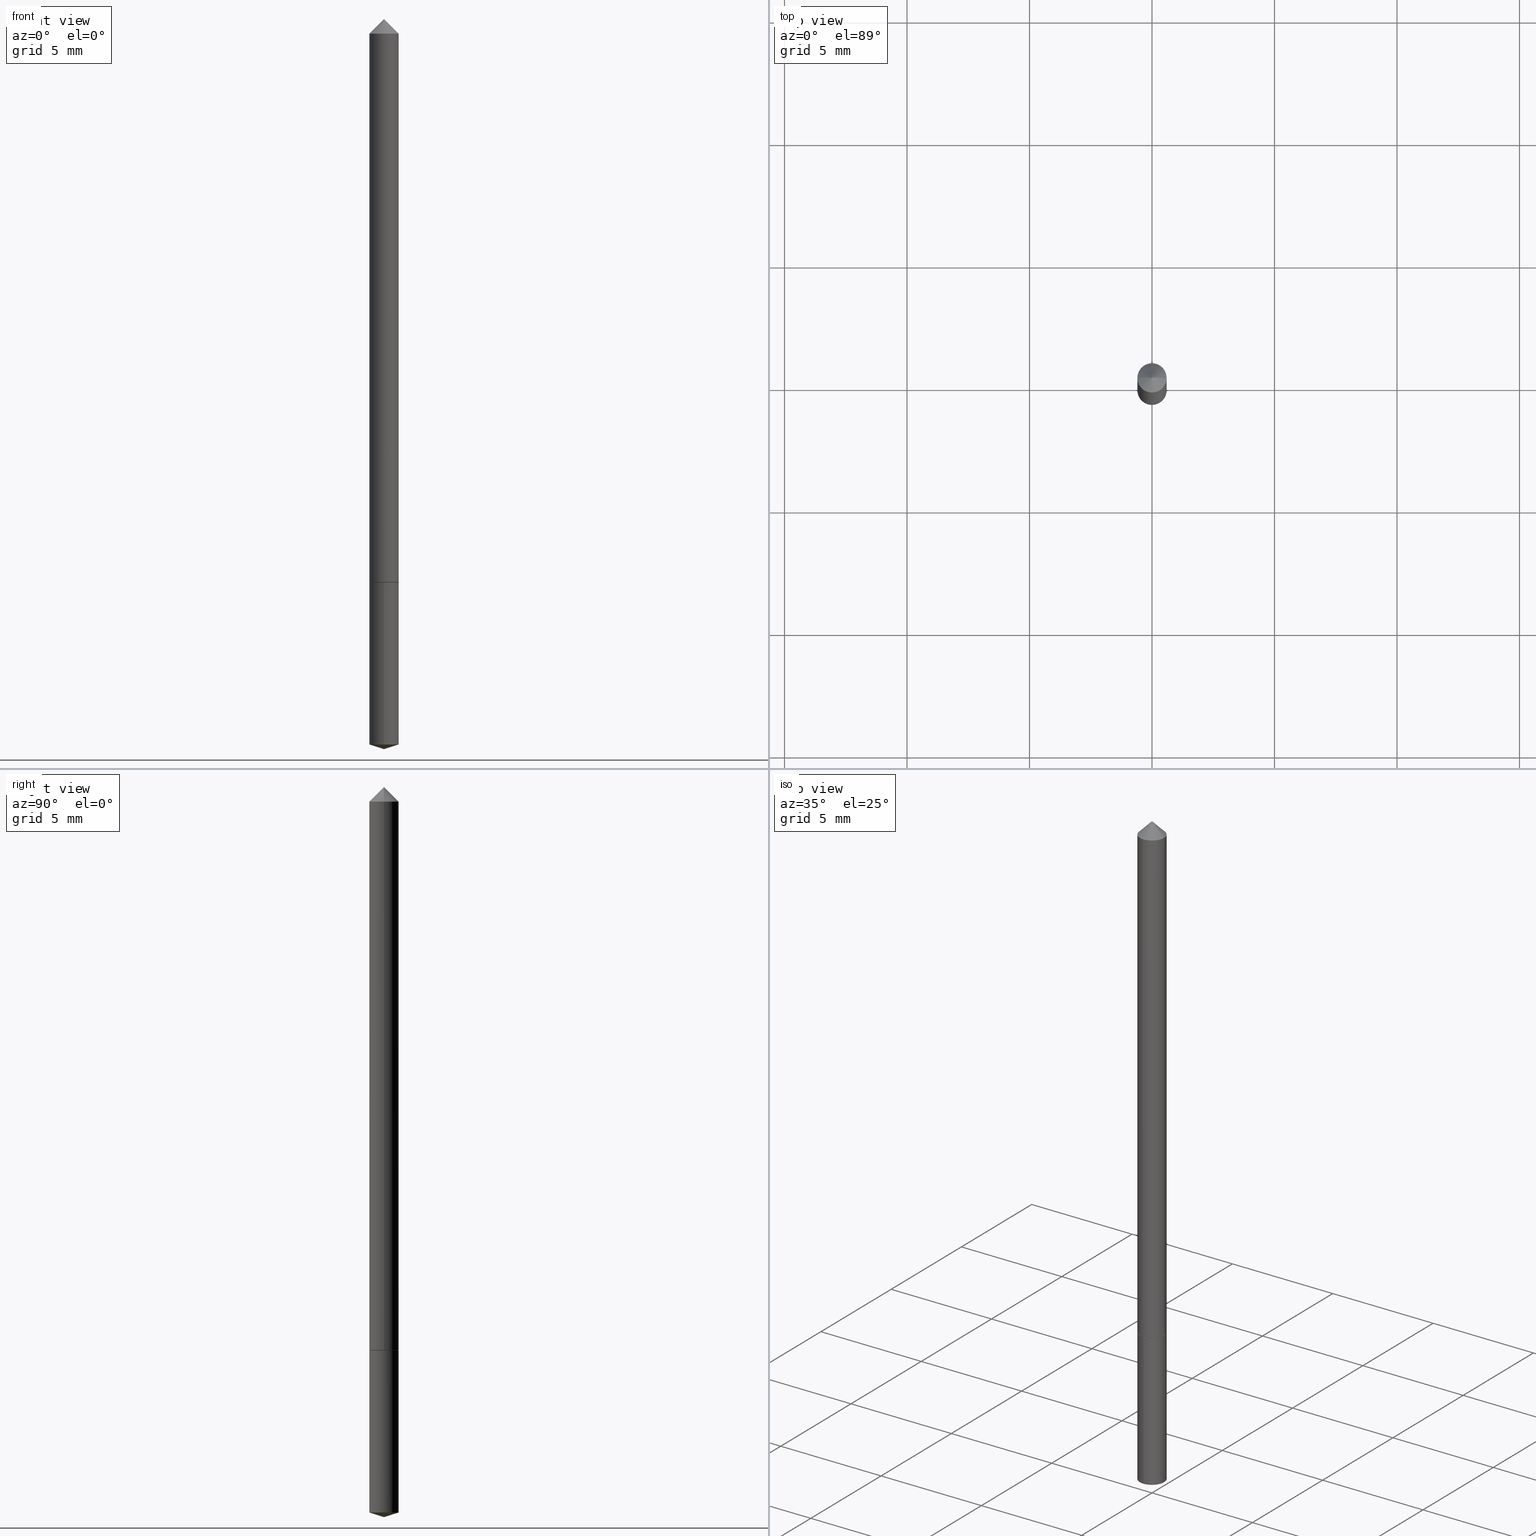
[diagram: canonical four-view strip — front | top / right | iso, engineering-drawing reading convention]
A machine part, canonical four-view strip (front | top / right | iso — engineering-drawing reading convention). The complete STEP part file that produces these views, byte-faithful:
ISO-10303-21;
HEADER;
FILE_DESCRIPTION (( 'STEP AP203' ),
    '1' );
FILE_NAME ('68657.STEP',
    '2024-04-23T13:25:48',
    ( '' ),
    ( '' ),
    'SwSTEP 2.0',
    'SolidWorks 2023',
    '' );
FILE_SCHEMA (( 'CONFIG_CONTROL_DESIGN' ));
ENDSEC;

DATA;
#1 = CARTESIAN_POINT ( 'NONE',  ( 1.676880856394122855E-16, 0.02359999999999589509, -1.173658948582456452 ) ) ;
#2 = DIRECTION ( 'NONE',  ( -0.7071067811865452413, 2.468850131082233000E-15, -0.7071067811865497932 ) ) ;
#3 = EDGE_CURVE ( 'NONE', #189, #140, #213, .T. ) ;
#4 = DIRECTION ( 'NONE',  ( 1.000000000000000000, -6.982962677686267499E-15, 0.000000000000000000 ) ) ;
#5 = AXIS2_PLACEMENT_3D ( 'NONE', #37, #342, #318 ) ;
#6 = AXIS2_PLACEMENT_3D ( 'NONE', #177, #261, #347 ) ;
#7 = APPLICATION_CONTEXT ( 'configuration controlled 3d designs of mechanical parts and assemblies' ) ;
#8 = DIRECTION ( 'NONE',  ( 2.445339444315170248E-29, -3.491666592403757410E-15, -1.000000000000000000 ) ) ;
#9 = DIRECTION ( 'NONE',  ( 1.000000000000000000, -6.982962677686267499E-15, 0.000000000000000000 ) ) ;
#10 = APPROVAL ( #69, 'UNSPECIFIED' ) ;
#11 = FACE_OUTER_BOUND ( 'NONE', #276, .T. ) ;
#12 = EDGE_LOOP ( 'NONE', ( #73, #303, #221 ) ) ;
#13 = DIRECTION ( 'NONE',  ( -6.982962677686265133E-15, -1.000000000000000000, 5.787813545898861862E-15 ) ) ;
#14 = DIRECTION ( 'NONE',  ( -2.445468806185136597E-29, 3.491481338843145583E-15, 1.000000000000000000 ) ) ;
#15 = APPROVAL_ROLE ( '' ) ;
#16 = AXIS2_PLACEMENT_3D ( 'NONE', #82, #167, #33 ) ;
#17 = AXIS2_PLACEMENT_3D ( 'NONE', #23, #352, #132 ) ;
#18 = APPROVAL_STATUS ( 'not_yet_approved' ) ;
#19 = ORIENTED_EDGE ( 'NONE', *, *, #254, .F. ) ;
#20 = VERTEX_POINT ( 'NONE', #79 ) ;
#21 = PERSON_AND_ORGANIZATION ( #195, #191 ) ;
#22 = ORIENTED_EDGE ( 'NONE', *, *, #355, .T. ) ;
#23 = CARTESIAN_POINT ( 'NONE',  ( 0.000000000000000000, 0.000000000000000000, 0.000000000000000000 ) ) ;
#24 =( GEOMETRIC_REPRESENTATION_CONTEXT ( 3 ) GLOBAL_UNCERTAINTY_ASSIGNED_CONTEXT ( ( #183 ) ) GLOBAL_UNIT_ASSIGNED_CONTEXT ( ( #149, #71, #46 ) ) REPRESENTATION_CONTEXT ( 'NONE', 'WORKASPACE' ) );
#25 = ORIENTED_EDGE ( 'NONE', *, *, #119, .F. ) ;
#26 = DIRECTION ( 'NONE',  ( -2.445468806185136597E-29, 3.491481338843145583E-15, 1.000000000000000000 ) ) ;
#27 = DIRECTION ( 'NONE',  ( -2.445468806185136877E-29, 3.491481338843145188E-15, 1.000000000000000000 ) ) ;
#28 = EDGE_CURVE ( 'NONE', #20, #301, #238, .T. ) ;
#29 = CARTESIAN_POINT ( 'NONE',  ( 7.642090019328602662E-31, -1.091087918388490267E-16, -0.03125000000000020817 ) ) ;
#30 = AXIS2_PLACEMENT_3D ( 'NONE', #85, #145, #312 ) ;
#31 = DIRECTION ( 'NONE',  ( 0.7071067811861974084, -2.468850131078589646E-15, 0.7071067811868976261 ) ) ;
#32 = PRODUCT_DEFINITION ( 'UNKNOWN', '', #52, #74 ) ;
#33 = DIRECTION ( 'NONE',  ( 1.000000000000000000, -6.982962677686267499E-15, 0.000000000000000000 ) ) ;
#34 = CLOSED_SHELL ( 'NONE', ( #341, #84, #292, #256, #251 ) ) ;
#35 = CARTESIAN_POINT ( 'NONE',  ( -1.537650599940588844E-29, -8.589195821513409908E-15, -0.9133000000000002228 ) ) ;
#36 = CYLINDRICAL_SURFACE ( 'NONE', #165, 0.02360000000000000292 ) ;
#37 = CARTESIAN_POINT ( 'NONE',  ( 2.233446660688885291E-29, -3.188769906765445031E-15, -0.9133000000000001117 ) ) ;
#38 = AXIS2_PLACEMENT_3D ( 'NONE', #87, #26, #108 ) ;
#39 = LENGTH_MEASURE_WITH_UNIT ( LENGTH_MEASURE( 0.02539999999999999897 ), #123 );
#40 = ORIENTED_EDGE ( 'NONE', *, *, #161, .T. ) ;
#41 = ADVANCED_FACE ( 'NONE', ( #226 ), #202, .T. ) ;
#42 = DATE_AND_TIME ( #97, #348 ) ;
#43 = COORDINATED_UNIVERSAL_TIME_OFFSET ( 5, 0, .BEHIND. ) ;
#44 = EDGE_LOOP ( 'NONE', ( #25, #274, #281 ) ) ;
#45 = LOCAL_TIME ( 9, 25, 48.00000000000000000, #125 ) ;
#46 =( NAMED_UNIT ( * ) SI_UNIT ( $, .STERADIAN. ) SOLID_ANGLE_UNIT ( ) );
#47 = CARTESIAN_POINT ( 'NONE',  ( 2.870112667337990554E-29, -4.097856549564174586E-15, -1.173658948582456230 ) ) ;
#48 = EDGE_CURVE ( 'NONE', #324, #321, #265, .T. ) ;
#49 = CALENDAR_DATE ( 2024, 23, 4 ) ;
#50 = ORIENTED_EDGE ( 'NONE', *, *, #214, .F. ) ;
#51 = ORIENTED_EDGE ( 'NONE', *, *, #119, .T. ) ;
#52 = PRODUCT_DEFINITION_FORMATION_WITH_SPECIFIED_SOURCE ( 'ANY', '', #169, .NOT_KNOWN. ) ;
#53 = ORIENTED_EDGE ( 'NONE', *, *, #48, .F. ) ;
#54 = DIRECTION ( 'NONE',  ( -0.7071067811861974084, 7.493145998869088827E-15, 0.7071067811868976261 ) ) ;
#55 = MANIFOLD_SOLID_BREP ( 'Body-Move/Copy2[1]', #34 ) ;
#56 = DIRECTION ( 'NONE',  ( -6.982962677686265133E-15, -1.000000000000000000, 5.787813545898861862E-15 ) ) ;
#57 = DIRECTION ( 'NONE',  ( -1.000000000000000000, 6.982962677686265922E-15, 0.000000000000000000 ) ) ;
#58 = DIRECTION ( 'NONE',  ( 0.7071067811865452413, -7.319954787623248157E-15, -0.7071067811865497932 ) ) ;
#59 = MANIFOLD_SOLID_BREP ( 'Body-Move/Copy2[2]', #298 ) ;
#60 = LINE ( 'NONE', #203, #344 ) ;
#61 = LINE ( 'NONE', #116, #208 ) ;
#62 = CIRCLE ( 'NONE', #16, 0.02360000000000010700 ) ;
#63 = DIRECTION ( 'NONE',  ( -6.982962677686265133E-15, -1.000000000000000000, 5.787813545898861862E-15 ) ) ;
#64 = DIRECTION ( 'NONE',  ( 1.000000000000000000, -6.982962677686265133E-15, 4.876176775795935793E-29 ) ) ;
#65 = CARTESIAN_POINT ( 'NONE',  ( 0.000000000000000000, 0.000000000000000000, 0.000000000000000000 ) ) ;
#66 = CC_DESIGN_DATE_AND_TIME_ASSIGNMENT ( #104, #155, ( #339 ) ) ;
#67 = APPROVAL_PERSON_ORGANIZATION ( #325, #364, #77 ) ;
#68 = DIRECTION ( 'NONE',  ( -6.659769872151642344E-15, -0.9537169507482283759, 0.3007057995042682896 ) ) ;
#69 = APPROVAL_STATUS ( 'not_yet_approved' ) ;
#70 = ORIENTED_EDGE ( 'NONE', *, *, #188, .T. ) ;
#71 =( NAMED_UNIT ( * ) PLANE_ANGLE_UNIT ( ) SI_UNIT ( $, .RADIAN. ) );
#72 = CC_DESIGN_PERSON_AND_ORGANIZATION_ASSIGNMENT ( #330, #244, ( #339 ) ) ;
#73 = ORIENTED_EDGE ( 'NONE', *, *, #204, .F. ) ;
#74 = DESIGN_CONTEXT ( 'detailed design', #131, 'design' ) ;
#75 = PERSON_AND_ORGANIZATION ( #195, #191 ) ;
#76 = ORIENTED_EDGE ( 'NONE', *, *, #355, .F. ) ;
#77 = APPROVAL_ROLE ( '' ) ;
#78 = ORIENTED_EDGE ( 'NONE', *, *, #188, .F. ) ;
#79 = CARTESIAN_POINT ( 'NONE',  ( -0.02310000000000015860, -3.021985307630750226E-15, -0.9133000000000003338 ) ) ;
#80 = APPROVAL ( #18, 'UNSPECIFIED' ) ;
#81 = AXIS2_PLACEMENT_3D ( 'NONE', #201, #338, #57 ) ;
#82 = CARTESIAN_POINT ( 'NONE',  ( 2.232223926285792489E-29, -3.187024166096022738E-15, -0.9127999999999999448 ) ) ;
#83 = DIRECTION ( 'NONE',  ( -2.445468806185136597E-29, 3.491481338843145583E-15, 1.000000000000000000 ) ) ;
#84 = ADVANCED_FACE ( 'NONE', ( #230 ), #170, .T. ) ;
#85 = CARTESIAN_POINT ( 'NONE',  ( 7.642090019328602662E-31, -1.091087918388490267E-16, -0.03125000000000020817 ) ) ;
#86 = VECTOR ( 'NONE', #110, 39.37007874015748143 ) ;
#87 = CARTESIAN_POINT ( 'NONE',  ( 2.232223926285792489E-29, -3.187024166096022738E-15, -0.9127999999999999448 ) ) ;
#88 = CIRCLE ( 'NONE', #267, 0.02360000000000000639 ) ;
#89 = CARTESIAN_POINT ( 'NONE',  ( 2.233446660688885851E-29, -3.188769906765445820E-15, -0.9133000000000003338 ) ) ;
#90 = DIRECTION ( 'NONE',  ( -2.445339444315170528E-29, 3.491666592403757410E-15, 1.000000000000000000 ) ) ;
#91 = DIRECTION ( 'NONE',  ( -2.445339444315170528E-29, 3.491666592403757410E-15, 1.000000000000000000 ) ) ;
#92 = AXIS2_PLACEMENT_3D ( 'NONE', #310, #360, #340 ) ;
#93 = CARTESIAN_POINT ( 'NONE',  ( -0.02360000000000005843, 1.676880856393840590E-16, -1.160868681300160606E-30 ) ) ;
#94 = EDGE_CURVE ( 'NONE', #301, #20, #305, .T. ) ;
#95 = FACE_OUTER_BOUND ( 'NONE', #264, .T. ) ;
#96 = CC_DESIGN_SECURITY_CLASSIFICATION ( #339, ( #52 ) ) ;
#97 = CALENDAR_DATE ( 2024, 23, 4 ) ;
#98 = ORIENTED_EDGE ( 'NONE', *, *, #322, .F. ) ;
#99 = CC_DESIGN_PERSON_AND_ORGANIZATION_ASSIGNMENT ( #222, #349, ( #52 ) ) ;
#100 = MECHANICAL_CONTEXT ( 'NONE', #7, 'mechanical' ) ;
#101 = ORIENTED_EDGE ( 'NONE', *, *, #148, .F. ) ;
#102 = DIRECTION ( 'NONE',  ( -2.445339444315170528E-29, 3.491666592403757410E-15, 1.000000000000000000 ) ) ;
#103 = AXIS2_PLACEMENT_3D ( 'NONE', #284, #112, #56 ) ;
#104 = DATE_AND_TIME ( #354, #259 ) ;
#105 = EDGE_LOOP ( 'NONE', ( #50, #51, #296 ) ) ;
#106 = DATE_TIME_ROLE ( 'creation_date' ) ;
#107 = ORIENTED_EDGE ( 'NONE', *, *, #194, .T. ) ;
#108 = DIRECTION ( 'NONE',  ( 1.000000000000000000, -6.982962677686267499E-15, 0.000000000000000000 ) ) ;
#109 = CONICAL_SURFACE ( 'NONE', #38, 0.02360000000000010700, 0.7853981633969532306 ) ;
#110 = DIRECTION ( 'NONE',  ( 6.776566513254269181E-15, 0.9537169507482304853, 0.3007057995042616838 ) ) ;
#111 = PRODUCT_RELATED_PRODUCT_CATEGORY ( 'detail', '', ( #169 ) ) ;
#112 = DIRECTION ( 'NONE',  ( -2.445339444315170528E-29, 3.491666592403757410E-15, 1.000000000000000000 ) ) ;
#113 = DIRECTION ( 'NONE',  ( -2.445468806185136597E-29, 3.491481338843145583E-15, 1.000000000000000000 ) ) ;
#114 = CARTESIAN_POINT ( 'NONE',  ( 1.852154347101886634E-31, -2.697661427278152003E-17, -0.007650000000000051724 ) ) ;
#115 = AXIS2_PLACEMENT_3D ( 'NONE', #178, #91, #63 ) ;
#116 = CARTESIAN_POINT ( 'NONE',  ( 2.888190417680647849E-29, -4.124007412288078637E-15, -1.181100000000000039 ) ) ;
#117 = ADVANCED_FACE ( 'NONE', ( #250 ), #287, .T. ) ;
#118 = DIRECTION ( 'NONE',  ( -2.438088387897960049E-29, 3.491481338843145188E-15, 1.000000000000000000 ) ) ;
#119 = EDGE_CURVE ( 'NONE', #193, #243, #205, .T. ) ;
#120 = DIRECTION ( 'NONE',  ( 1.000000000000000000, -6.982962677686265133E-15, 4.876176775795935793E-29 ) ) ;
#121 = VECTOR ( 'NONE', #150, 39.37007874015748143 ) ;
#122 = ADVANCED_FACE ( 'NONE', ( #313 ), #109, .T. ) ;
#123 =( LENGTH_UNIT ( ) NAMED_UNIT ( * ) SI_UNIT ( $, .METRE. ) );
#124 = FACE_OUTER_BOUND ( 'NONE', #12, .T. ) ;
#125 = COORDINATED_UNIVERSAL_TIME_OFFSET ( 5, 0, .BEHIND. ) ;
#126 = ORIENTED_EDGE ( 'NONE', *, *, #182, .T. ) ;
#127 = AXIS2_PLACEMENT_3D ( 'NONE', #47, #102, #219 ) ;
#128 = DIMENSIONAL_EXPONENTS ( 1.000000000000000000, 0.000000000000000000, 0.000000000000000000, 0.000000000000000000, 0.000000000000000000, 0.000000000000000000, 0.000000000000000000 ) ;
#129 = CALENDAR_DATE ( 2024, 23, 4 ) ;
#130 = EDGE_LOOP ( 'NONE', ( #160, #70, #133, #299 ) ) ;
#131 = APPLICATION_CONTEXT ( 'configuration controlled 3d designs of mechanical parts and assemblies' ) ;
#132 = DIRECTION ( 'NONE',  ( 1.000000000000000000, 0.000000000000000000, 0.000000000000000000 ) ) ;
#133 = ORIENTED_EDGE ( 'NONE', *, *, #194, .F. ) ;
#134 = SECURITY_CLASSIFICATION_LEVEL ( 'unclassified' ) ;
#135 = ORIENTED_EDGE ( 'NONE', *, *, #143, .T. ) ;
#136 = AXIS2_PLACEMENT_3D ( 'NONE', #29, #113, #255 ) ;
#137 = CC_DESIGN_APPROVAL ( #364, ( #52 ) ) ;
#138 = APPLICATION_PROTOCOL_DEFINITION ( 'international standard', 'config_control_design', 1994, #131 ) ;
#139 = CC_DESIGN_DATE_AND_TIME_ASSIGNMENT ( #358, #106, ( #32 ) ) ;
#140 = VERTEX_POINT ( 'NONE', #307 ) ;
#141 = DIRECTION ( 'NONE',  ( -2.445468806185136597E-29, 3.491481338843145583E-15, 1.000000000000000000 ) ) ;
#142 = CARTESIAN_POINT ( 'NONE',  ( 2.232223926285792489E-29, -3.187024166096022738E-15, -0.9127999999999999448 ) ) ;
#143 = EDGE_CURVE ( 'NONE', #301, #197, #60, .T. ) ;
#144 = APPROVAL_PERSON_ORGANIZATION ( #196, #10, #184 ) ;
#145 = DIRECTION ( 'NONE',  ( 2.445468806185136597E-29, -3.491481338843145583E-15, -1.000000000000000000 ) ) ;
#146 = FACE_OUTER_BOUND ( 'NONE', #130, .T. ) ;
#147 = CARTESIAN_POINT ( 'NONE',  ( 2.888428782077682674E-29, -4.123669028134263878E-15, -1.181100000000000039 ) ) ;
#148 = EDGE_CURVE ( 'NONE', #197, #243, #282, .T. ) ;
#149 =( CONVERSION_BASED_UNIT ( 'INCH', #39 ) LENGTH_UNIT ( ) NAMED_UNIT ( #128 ) );
#150 = DIRECTION ( 'NONE',  ( -2.445468806185136877E-29, 3.491481338843145188E-15, 1.000000000000000000 ) ) ;
#151 = CYLINDRICAL_SURFACE ( 'NONE', #315, 0.02360000000000005843 ) ;
#152 = CC_DESIGN_PERSON_AND_ORGANIZATION_ASSIGNMENT ( #162, #275, ( #52 ) ) ;
#153 = DIRECTION ( 'NONE',  ( -2.445339444315170528E-29, 3.491666592403757410E-15, 1.000000000000000000 ) ) ;
#154 = CARTESIAN_POINT ( 'NONE',  ( 2.233446660688885291E-29, -3.188769906765445031E-15, -0.9133000000000001117 ) ) ;
#155 = DATE_TIME_ROLE ( 'classification_date' ) ;
#156 = VERTEX_POINT ( 'NONE', #258 ) ;
#157 = CONICAL_SURFACE ( 'NONE', #362, 0.02360000000000010700, 0.7853981633969532306 ) ;
#158 = ORIENTED_EDGE ( 'NONE', *, *, #3, .T. ) ;
#159 = DATE_AND_TIME ( #49, #171 ) ;
#160 = ORIENTED_EDGE ( 'NONE', *, *, #94, .T. ) ;
#161 = EDGE_CURVE ( 'NONE', #189, #321, #175, .T. ) ;
#162 = PERSON_AND_ORGANIZATION ( #195, #191 ) ;
#163 = ORIENTED_EDGE ( 'NONE', *, *, #227, .F. ) ;
#164 = VECTOR ( 'NONE', #54, 39.37007874015748143 ) ;
#165 = AXIS2_PLACEMENT_3D ( 'NONE', #343, #153, #286 ) ;
#166 = EDGE_LOOP ( 'NONE', ( #350, #40, #53, #76 ) ) ;
#167 = DIRECTION ( 'NONE',  ( -2.445468806185136597E-29, 3.491481338843145583E-15, 1.000000000000000000 ) ) ;
#168 = LINE ( 'NONE', #283, #293 ) ;
#169 = PRODUCT ( '68657', '68657', '', ( #100 ) ) ;
#170 = CONICAL_SURFACE ( 'NONE', #92, 124.8659371009175914, 1.265363707695897455 ) ;
#171 = LOCAL_TIME ( 9, 25, 48.00000000000000000, #300 ) ;
#172 = CARTESIAN_POINT ( 'NONE',  ( 0.02360000000000000639, -2.710165445862572413E-16, -0.03125000000000020817 ) ) ;
#173 = CARTESIAN_POINT ( 'NONE',  ( 1.676880856394059499E-16, 0.02359999999999681450, -0.9133000000000002228 ) ) ;
#174 = PRODUCT_DEFINITION_SHAPE ( 'NONE', 'NONE',  #32 ) ;
#175 = LINE ( 'NONE', #173, #176 ) ;
#176 = VECTOR ( 'NONE', #285, 39.37007874015748143 ) ;
#177 = CARTESIAN_POINT ( 'NONE',  ( -9.338489790522472800E-28, 1.333433504571021123E-13, 38.18897874015748073 ) ) ;
#178 = CARTESIAN_POINT ( 'NONE',  ( 2.870112667337990554E-29, -4.097856549564174586E-15, -1.173658948582456230 ) ) ;
#179 = CARTESIAN_POINT ( 'NONE',  ( 7.642090019328602662E-31, -1.091087918388490267E-16, -0.03125000000000020817 ) ) ;
#180 = CARTESIAN_POINT ( 'NONE',  ( -1.647979191933735680E-16, -0.02360000000000319134, -0.9132999999999998897 ) ) ;
#181 = CIRCLE ( 'NONE', #294, 0.02360000000000000292 ) ;
#182 = EDGE_CURVE ( 'NONE', #156, #197, #246, .T. ) ;
#183 = UNCERTAINTY_MEASURE_WITH_UNIT (LENGTH_MEASURE( 1.000000000000000082E-05 ), #149, 'distance_accuracy_value', 'NONE');
#184 = APPROVAL_ROLE ( '' ) ;
#185 = SHAPE_DEFINITION_REPRESENTATION ( #174, #217 ) ;
#186 = ORIENTED_EDGE ( 'NONE', *, *, #329, .F. ) ;
#187 = PERSON_AND_ORGANIZATION_ROLE ( 'design_owner' ) ;
#188 = EDGE_CURVE ( 'NONE', #20, #156, #332, .T. ) ;
#189 = VERTEX_POINT ( 'NONE', #1 ) ;
#190 = AXIS2_PLACEMENT_3D ( 'NONE', #346, #266, #64 ) ;
#191 = ORGANIZATION ( 'UNSPECIFIED', 'UNSPECIFIED', '' ) ;
#192 = APPROVAL_STATUS ( 'not_yet_approved' ) ;
#193 = VERTEX_POINT ( 'NONE', #114 ) ;
#194 = EDGE_CURVE ( 'NONE', #197, #156, #62, .T. ) ;
#195 = PERSON ( 'UNSPECIFIED', 'UNSPECIFIED', 'UNSPECIFIED', ('UNSPECIFIED'), ('UNSPECIFIED'), ('UNSPECIFIED') ) ;
#196 = PERSON_AND_ORGANIZATION ( #195, #191 ) ;
#197 = VERTEX_POINT ( 'NONE', #252 ) ;
#198 = CARTESIAN_POINT ( 'NONE',  ( 2.233446660688885851E-29, -3.188769906765445820E-15, -0.9133000000000003338 ) ) ;
#199 = CARTESIAN_POINT ( 'NONE',  ( -0.02360000000000010700, -3.019336080456638236E-15, -0.9127999999999999448 ) ) ;
#200 = DIRECTION ( 'NONE',  ( -2.445468806185136597E-29, 3.491481338843145583E-15, 1.000000000000000000 ) ) ;
#201 = CARTESIAN_POINT ( 'NONE',  ( 7.642090019328602662E-31, -1.091087918388490267E-16, -0.03125000000000020817 ) ) ;
#202 = CONICAL_SURFACE ( 'NONE', #81, 0.02360000000000000639, 0.7853981633974450594 ) ;
#203 = CARTESIAN_POINT ( 'NONE',  ( 0.02360000000000010700, -3.351822085289419381E-15, -0.9127999999999999448 ) ) ;
#204 = EDGE_CURVE ( 'NONE', #327, #189, #361, .T. ) ;
#205 = LINE ( 'NONE', #172, #311 ) ;
#206 = CARTESIAN_POINT ( 'NONE',  ( 1.676880856394123348E-16, 0.02359999999999681450, -0.9133000000000002228 ) ) ;
#207 = ADVANCED_FACE ( 'NONE', ( #146 ), #157, .T. ) ;
#208 = VECTOR ( 'NONE', #68, 39.37007874015748854 ) ;
#209 = LINE ( 'NONE', #180, #306 ) ;
#210 = DIRECTION ( 'NONE',  ( -2.445468806185136597E-29, 3.491481338843145583E-15, 1.000000000000000000 ) ) ;
#211 = CYLINDRICAL_SURFACE ( 'NONE', #190, 0.02360000000000005843 ) ;
#212 = DIRECTION ( 'NONE',  ( -2.445339444315170528E-29, 3.491666592403757410E-15, 1.000000000000000000 ) ) ;
#213 = CIRCLE ( 'NONE', #127, 0.02360000000000000292 ) ;
#214 = EDGE_CURVE ( 'NONE', #193, #249, #168, .T. ) ;
#215 = ORIENTED_EDGE ( 'NONE', *, *, #28, .F. ) ;
#216 = EDGE_LOOP ( 'NONE', ( #357, #215 ) ) ;
#217 = ADVANCED_BREP_SHAPE_REPRESENTATION ( '68657', ( #55, #59, #17 ), #24 ) ;
#218 = PERSON_AND_ORGANIZATION ( #195, #191 ) ;
#219 = DIRECTION ( 'NONE',  ( -6.982962677686265133E-15, -1.000000000000000000, 5.787813545898861862E-15 ) ) ;
#220 = AXIS2_PLACEMENT_3D ( 'NONE', #89, #200, #337 ) ;
#221 = ORIENTED_EDGE ( 'NONE', *, *, #3, .F. ) ;
#222 = PERSON_AND_ORGANIZATION ( #195, #191 ) ;
#223 = ORIENTED_EDGE ( 'NONE', *, *, #161, .F. ) ;
#224 = CARTESIAN_POINT ( 'NONE',  ( 0.02360000000000005843, -1.647979191933962724E-16, 1.150777719087843758E-30 ) ) ;
#225 = CARTESIAN_POINT ( 'NONE',  ( 2.232223926285792489E-29, -3.187024166096022738E-15, -0.9127999999999999448 ) ) ;
#226 = FACE_OUTER_BOUND ( 'NONE', #105, .T. ) ;
#227 = EDGE_CURVE ( 'NONE', #243, #249, #233, .T. ) ;
#228 = CARTESIAN_POINT ( 'NONE',  ( 0.02360000000000000639, -2.739067110322449540E-16, -0.03125000000000020817 ) ) ;
#229 = CC_DESIGN_APPROVAL ( #10, ( #339 ) ) ;
#230 = FACE_OUTER_BOUND ( 'NONE', #245, .T. ) ;
#231 = CYLINDRICAL_SURFACE ( 'NONE', #5, 0.02360000000000000292 ) ;
#232 = DIRECTION ( 'NONE',  ( 1.000000000000000000, -6.982962677686265922E-15, 4.876176775795935793E-29 ) ) ;
#233 = CIRCLE ( 'NONE', #136, 0.02360000000000000639 ) ;
#234 = LINE ( 'NONE', #93, #121 ) ;
#235 = DIRECTION ( 'NONE',  ( 6.982962677686265922E-15, 1.000000000000000000, -3.491666592403757410E-15 ) ) ;
#236 = CARTESIAN_POINT ( 'NONE',  ( -1.647979191933735680E-16, -0.02360000000000319134, -0.9132999999999998897 ) ) ;
#237 = APPROVAL_DATE_TIME ( #159, #364 ) ;
#238 = CIRCLE ( 'NONE', #326, 0.02310000000000015860 ) ;
#239 = EDGE_LOOP ( 'NONE', ( #78, #331, #135, #241 ) ) ;
#240 = COORDINATED_UNIVERSAL_TIME_OFFSET ( 5, 0, .BEHIND. ) ;
#241 = ORIENTED_EDGE ( 'NONE', *, *, #182, .F. ) ;
#242 = CC_DESIGN_PERSON_AND_ORGANIZATION_ASSIGNMENT ( #75, #302, ( #32 ) ) ;
#243 = VERTEX_POINT ( 'NONE', #228 ) ;
#244 = PERSON_AND_ORGANIZATION_ROLE ( 'classification_officer' ) ;
#245 = EDGE_LOOP ( 'NONE', ( #19, #262, #277 ) ) ;
#246 = CIRCLE ( 'NONE', #333, 0.02360000000000010700 ) ;
#247 = APPROVAL_PERSON_ORGANIZATION ( #21, #80, #15 ) ;
#248 = DATE_AND_TIME ( #297, #279 ) ;
#249 = VERTEX_POINT ( 'NONE', #290 ) ;
#250 = FACE_OUTER_BOUND ( 'NONE', #44, .T. ) ;
#251 = ADVANCED_FACE ( 'NONE', ( #260 ), #269, .F. ) ;
#252 = CARTESIAN_POINT ( 'NONE',  ( 0.02360000000000010700, -3.351822085289419381E-15, -0.9127999999999999448 ) ) ;
#253 = CIRCLE ( 'NONE', #115, 0.02360000000000000292 ) ;
#254 = EDGE_CURVE ( 'NONE', #327, #140, #61, .T. ) ;
#255 = DIRECTION ( 'NONE',  ( 1.000000000000000000, -6.982962677686267499E-15, 0.000000000000000000 ) ) ;
#256 = ADVANCED_FACE ( 'NONE', ( #11 ), #231, .T. ) ;
#257 = DIRECTION ( 'NONE',  ( -2.445468806185136597E-29, 3.491481338843145583E-15, 1.000000000000000000 ) ) ;
#258 = CARTESIAN_POINT ( 'NONE',  ( -0.02360000000000010700, -3.019336080456638236E-15, -0.9127999999999999448 ) ) ;
#259 = LOCAL_TIME ( 9, 25, 48.00000000000000000, #240 ) ;
#260 = FACE_OUTER_BOUND ( 'NONE', #353, .T. ) ;
#261 = DIRECTION ( 'NONE',  ( -2.445339444315170528E-29, 3.491666592403757410E-15, 1.000000000000000000 ) ) ;
#262 = ORIENTED_EDGE ( 'NONE', *, *, #204, .T. ) ;
#263 = FACE_OUTER_BOUND ( 'NONE', #166, .T. ) ;
#264 = EDGE_LOOP ( 'NONE', ( #107, #304, #163, #101 ) ) ;
#265 = CIRCLE ( 'NONE', #103, 0.02360000000000000292 ) ;
#266 = DIRECTION ( 'NONE',  ( -2.445468806185136597E-29, 3.491481338843145583E-15, 1.000000000000000000 ) ) ;
#267 = AXIS2_PLACEMENT_3D ( 'NONE', #179, #14, #9 ) ;
#268 = ADVANCED_FACE ( 'NONE', ( #95 ), #211, .T. ) ;
#269 = PLANE ( 'NONE',  #278 ) ;
#270 = ORIENTED_EDGE ( 'NONE', *, *, #280, .T. ) ;
#271 = APPROVAL_DATE_TIME ( #248, #80 ) ;
#272 = ORIENTED_EDGE ( 'NONE', *, *, #48, .T. ) ;
#273 = EDGE_CURVE ( 'NONE', #140, #189, #253, .T. ) ;
#274 = ORIENTED_EDGE ( 'NONE', *, *, #214, .T. ) ;
#275 = PERSON_AND_ORGANIZATION_ROLE ( 'creator' ) ;
#276 = EDGE_LOOP ( 'NONE', ( #223, #158, #22, #359 ) ) ;
#277 = ORIENTED_EDGE ( 'NONE', *, *, #273, .F. ) ;
#278 = AXIS2_PLACEMENT_3D ( 'NONE', #319, #8, #235 ) ;
#279 = LOCAL_TIME ( 9, 25, 48.00000000000000000, #43 ) ;
#280 = EDGE_CURVE ( 'NONE', #321, #324, #181, .T. ) ;
#281 = ORIENTED_EDGE ( 'NONE', *, *, #322, .T. ) ;
#282 = LINE ( 'NONE', #224, #356 ) ;
#283 = CARTESIAN_POINT ( 'NONE',  ( -0.02360000000000000639, 5.568912735454688829E-17, -0.03125000000000020817 ) ) ;
#284 = CARTESIAN_POINT ( 'NONE',  ( 2.233446660688885291E-29, -3.188769906765445031E-15, -0.9133000000000001117 ) ) ;
#285 = DIRECTION ( 'NONE',  ( -2.445339444315170528E-29, 3.491666592403757410E-15, 1.000000000000000000 ) ) ;
#286 = DIRECTION ( 'NONE',  ( -6.982962677686265133E-15, -1.000000000000000000, 5.787813545898861862E-15 ) ) ;
#287 = CONICAL_SURFACE ( 'NONE', #30, 0.02360000000000000639, 0.7853981633974450594 ) ;
#288 = AXIS2_PLACEMENT_3D ( 'NONE', #35, #118, #232 ) ;
#289 = FACE_OUTER_BOUND ( 'NONE', #351, .T. ) ;
#290 = CARTESIAN_POINT ( 'NONE',  ( -0.02360000000000000639, -1.480378393328050233E-15, -0.03125000000000020817 ) ) ;
#291 = FACE_OUTER_BOUND ( 'NONE', #216, .T. ) ;
#292 = ADVANCED_FACE ( 'NONE', ( #124 ), #334, .T. ) ;
#293 = VECTOR ( 'NONE', #2, 39.37007874015748143 ) ;
#294 = AXIS2_PLACEMENT_3D ( 'NONE', #154, #90, #13 ) ;
#295 = COORDINATED_UNIVERSAL_TIME_OFFSET ( 5, 0, .BEHIND. ) ;
#296 = ORIENTED_EDGE ( 'NONE', *, *, #227, .T. ) ;
#297 = CALENDAR_DATE ( 2024, 23, 4 ) ;
#298 = CLOSED_SHELL ( 'NONE', ( #41, #268, #207, #335, #122, #308, #117 ) ) ;
#299 = ORIENTED_EDGE ( 'NONE', *, *, #143, .F. ) ;
#300 = COORDINATED_UNIVERSAL_TIME_OFFSET ( 5, 0, .BEHIND. ) ;
#301 = VERTEX_POINT ( 'NONE', #316 ) ;
#302 = PERSON_AND_ORGANIZATION_ROLE ( 'creator' ) ;
#303 = ORIENTED_EDGE ( 'NONE', *, *, #254, .T. ) ;
#304 = ORIENTED_EDGE ( 'NONE', *, *, #329, .T. ) ;
#305 = CIRCLE ( 'NONE', #220, 0.02310000000000015860 ) ;
#306 = VECTOR ( 'NONE', #212, 39.37007874015748143 ) ;
#307 = CARTESIAN_POINT ( 'NONE',  ( -1.647979191933671339E-16, -0.02360000000000408993, -1.173658948582456008 ) ) ;
#308 = ADVANCED_FACE ( 'NONE', ( #289 ), #151, .T. ) ;
#309 = DIRECTION ( 'NONE',  ( 1.000000000000000000, -6.982962677686267499E-15, 0.000000000000000000 ) ) ;
#310 = CARTESIAN_POINT ( 'NONE',  ( -9.338489790522472800E-28, 1.333433504571021123E-13, 38.18897874015748073 ) ) ;
#311 = VECTOR ( 'NONE', #58, 39.37007874015748143 ) ;
#312 = DIRECTION ( 'NONE',  ( -1.000000000000000000, 6.982962677686265922E-15, 0.000000000000000000 ) ) ;
#313 = FACE_OUTER_BOUND ( 'NONE', #239, .T. ) ;
#314 = PLANE ( 'NONE',  #288 ) ;
#315 = AXIS2_PLACEMENT_3D ( 'NONE', #65, #210, #120 ) ;
#316 = CARTESIAN_POINT ( 'NONE',  ( 0.02310000000000015860, -3.350076344619999849E-15, -0.9133000000000003338 ) ) ;
#317 = CARTESIAN_POINT ( 'NONE',  ( 2.888190417680647849E-29, -4.124007412288078637E-15, -1.181100000000000039 ) ) ;
#318 = DIRECTION ( 'NONE',  ( -6.982962677686265133E-15, -1.000000000000000000, 5.787813545898861862E-15 ) ) ;
#319 = CARTESIAN_POINT ( 'NONE',  ( 2.233446660688885291E-29, -3.188769906765445031E-15, -0.9133000000000001117 ) ) ;
#320 = APPROVAL_DATE_TIME ( #42, #10 ) ;
#321 = VERTEX_POINT ( 'NONE', #206 ) ;
#322 = EDGE_CURVE ( 'NONE', #249, #243, #88, .T. ) ;
#323 = APPLICATION_PROTOCOL_DEFINITION ( 'international standard', 'config_control_design', 1994, #7 ) ;
#324 = VERTEX_POINT ( 'NONE', #236 ) ;
#325 = PERSON_AND_ORGANIZATION ( #195, #191 ) ;
#326 = AXIS2_PLACEMENT_3D ( 'NONE', #198, #257, #336 ) ;
#327 = VERTEX_POINT ( 'NONE', #317 ) ;
#328 = ORIENTED_EDGE ( 'NONE', *, *, #148, .T. ) ;
#329 = EDGE_CURVE ( 'NONE', #156, #249, #234, .T. ) ;
#330 = PERSON_AND_ORGANIZATION ( #195, #191 ) ;
#331 = ORIENTED_EDGE ( 'NONE', *, *, #28, .T. ) ;
#332 = LINE ( 'NONE', #199, #164 ) ;
#333 = AXIS2_PLACEMENT_3D ( 'NONE', #142, #141, #4 ) ;
#334 = CONICAL_SURFACE ( 'NONE', #6, 124.8659371009175914, 1.265363707695897455 ) ;
#335 = ADVANCED_FACE ( 'NONE', ( #291 ), #314, .F. ) ;
#336 = DIRECTION ( 'NONE',  ( 1.000000000000000000, -6.982962677686272233E-15, 0.000000000000000000 ) ) ;
#337 = DIRECTION ( 'NONE',  ( 1.000000000000000000, -6.982962677686272233E-15, 0.000000000000000000 ) ) ;
#338 = DIRECTION ( 'NONE',  ( 2.445468806185136597E-29, -3.491481338843145583E-15, -1.000000000000000000 ) ) ;
#339 = SECURITY_CLASSIFICATION ( '', '', #134 ) ;
#340 = DIRECTION ( 'NONE',  ( -6.982962677686265922E-15, -1.000000000000000000, 3.500519750498633829E-15 ) ) ;
#341 = ADVANCED_FACE ( 'NONE', ( #263 ), #36, .T. ) ;
#342 = DIRECTION ( 'NONE',  ( -2.445339444315170528E-29, 3.491666592403757410E-15, 1.000000000000000000 ) ) ;
#343 = CARTESIAN_POINT ( 'NONE',  ( 2.233446660688885291E-29, -3.188769906765445031E-15, -0.9133000000000001117 ) ) ;
#344 = VECTOR ( 'NONE', #31, 39.37007874015748143 ) ;
#345 = CC_DESIGN_PERSON_AND_ORGANIZATION_ASSIGNMENT ( #218, #187, ( #169 ) ) ;
#346 = CARTESIAN_POINT ( 'NONE',  ( 0.000000000000000000, 0.000000000000000000, 0.000000000000000000 ) ) ;
#347 = DIRECTION ( 'NONE',  ( -6.982962677686265922E-15, -1.000000000000000000, 3.500519750498633829E-15 ) ) ;
#348 = LOCAL_TIME ( 9, 25, 48.00000000000000000, #295 ) ;
#349 = PERSON_AND_ORGANIZATION_ROLE ( 'design_supplier' ) ;
#350 = ORIENTED_EDGE ( 'NONE', *, *, #273, .T. ) ;
#351 = EDGE_LOOP ( 'NONE', ( #186, #126, #328, #98 ) ) ;
#352 = DIRECTION ( 'NONE',  ( 0.000000000000000000, 0.000000000000000000, 1.000000000000000000 ) ) ;
#353 = EDGE_LOOP ( 'NONE', ( #272, #270 ) ) ;
#354 = CALENDAR_DATE ( 2024, 23, 4 ) ;
#355 = EDGE_CURVE ( 'NONE', #140, #324, #209, .T. ) ;
#356 = VECTOR ( 'NONE', #27, 39.37007874015748143 ) ;
#357 = ORIENTED_EDGE ( 'NONE', *, *, #94, .F. ) ;
#358 = DATE_AND_TIME ( #129, #45 ) ;
#359 = ORIENTED_EDGE ( 'NONE', *, *, #280, .F. ) ;
#360 = DIRECTION ( 'NONE',  ( -2.445339444315170528E-29, 3.491666592403757410E-15, 1.000000000000000000 ) ) ;
#361 = LINE ( 'NONE', #147, #86 ) ;
#362 = AXIS2_PLACEMENT_3D ( 'NONE', #225, #83, #309 ) ;
#363 = CC_DESIGN_APPROVAL ( #80, ( #32 ) ) ;
#364 = APPROVAL ( #192, 'UNSPECIFIED' ) ;
ENDSEC;
END-ISO-10303-21;
